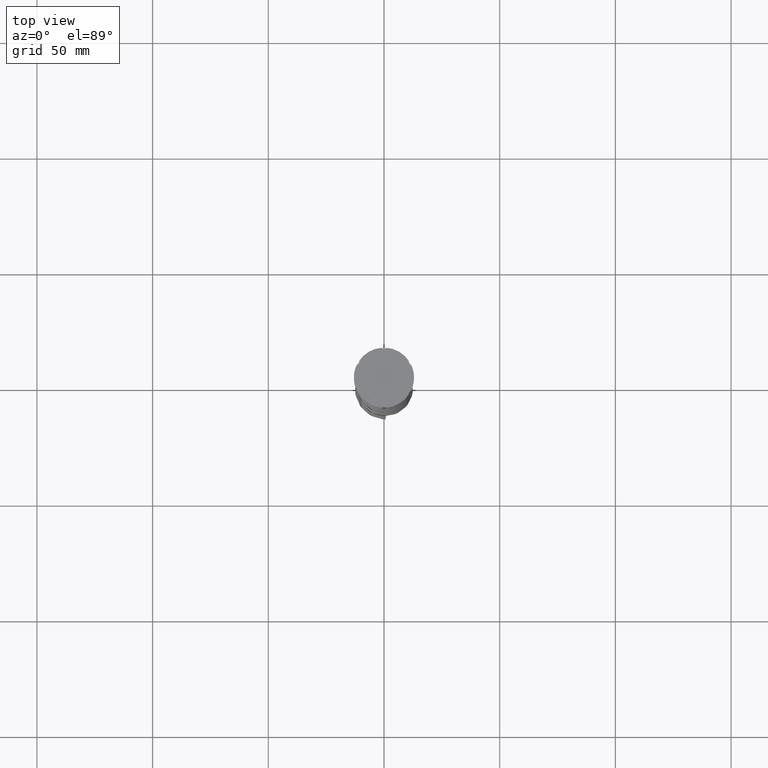
[diagram: clean part render]
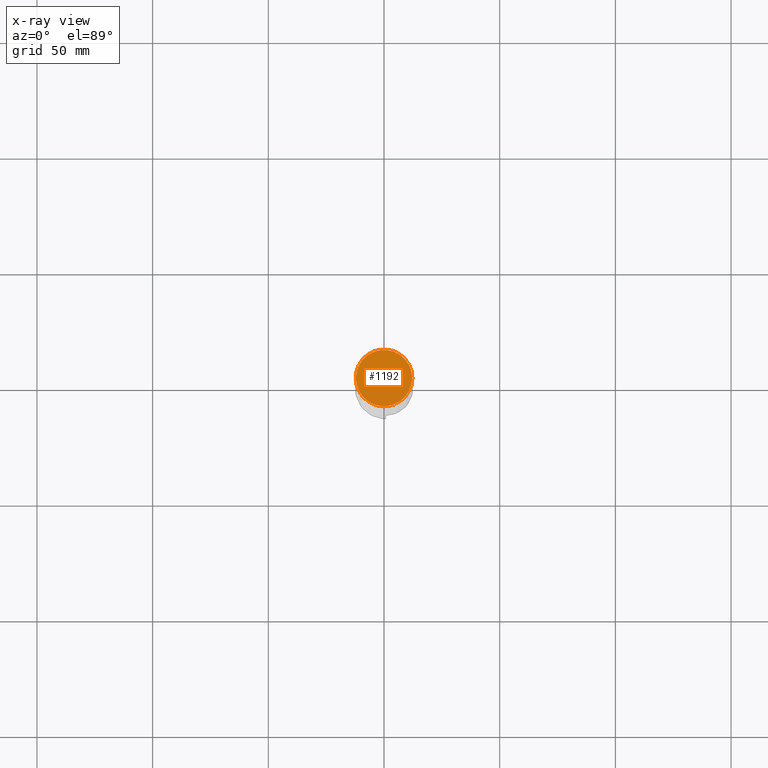
[diagram: x-ray — body ghosted, one internal face saturated and labeled with its STEP entity id]
A machine part, top view, then the same camera in x-ray: the body is ghosted and one INTERNAL B-rep face — a face not visible from any outside direction — is saturated and labeled: STEP entity #1192.
In plain terms, the highlighted planar face has unit normal (0, 0, -1).
Its self-contained STEP definition (entity closure, byte-faithful):
#159 = VERTEX_POINT ( 'NONE', #2824 ) ;
#176 = FACE_OUTER_BOUND ( 'NONE', #2832, .T. ) ;
#363 = AXIS2_PLACEMENT_3D ( 'NONE', #2960, #1294, #3026 ) ;
#630 = AXIS2_PLACEMENT_3D ( 'NONE', #1702, #633, #3427 ) ;
#633 = DIRECTION ( 'NONE',  ( -0.000000000000000000, -0.000000000000000000, 1.000000000000000000 ) ) ;
#930 = PLANE ( 'NONE',  #363 ) ;
#1051 = DIRECTION ( 'NONE',  ( -1.000000000000000000, 0.000000000000000000, 0.000000000000000000 ) ) ;
#1192 = ADVANCED_FACE ( 'NONE', ( #176 ), #930, .F. ) ;
#1294 = DIRECTION ( 'NONE',  ( 0.000000000000000000, 0.000000000000000000, -1.000000000000000000 ) ) ;
#1385 = CIRCLE ( 'NONE', #3856, 12.20000000000000639 ) ;
#1444 = DIRECTION ( 'NONE',  ( -0.000000000000000000, -0.000000000000000000, 1.000000000000000000 ) ) ;
#1702 = CARTESIAN_POINT ( 'NONE',  ( 0.000000000000000000, 0.000000000000000000, -12.00000000000000000 ) ) ;
#1714 = VERTEX_POINT ( 'NONE', #2072 ) ;
#1791 = CARTESIAN_POINT ( 'NONE',  ( 0.000000000000000000, 0.000000000000000000, -12.00000000000000000 ) ) ;
#2054 = EDGE_CURVE ( 'NONE', #1714, #159, #1385, .T. ) ;
#2072 = CARTESIAN_POINT ( 'NONE',  ( 12.20000000000000639, 1.512438796946981880E-15, -12.00000000000000000 ) ) ;
#2742 = ORIENTED_EDGE ( 'NONE', *, *, #3607, .T. ) ;
#2824 = CARTESIAN_POINT ( 'NONE',  ( -12.20000000000000639, 0.000000000000000000, -12.00000000000000000 ) ) ;
#2832 = EDGE_LOOP ( 'NONE', ( #2742, #3263 ) ) ;
#2960 = CARTESIAN_POINT ( 'NONE',  ( 0.000000000000000000, 0.000000000000000000, -12.00000000000000000 ) ) ;
#3026 = DIRECTION ( 'NONE',  ( -1.000000000000000000, 0.000000000000000000, -0.000000000000000000 ) ) ;
#3263 = ORIENTED_EDGE ( 'NONE', *, *, #2054, .T. ) ;
#3427 = DIRECTION ( 'NONE',  ( -1.000000000000000000, 0.000000000000000000, 0.000000000000000000 ) ) ;
#3607 = EDGE_CURVE ( 'NONE', #159, #1714, #3900, .T. ) ;
#3856 = AXIS2_PLACEMENT_3D ( 'NONE', #1791, #1444, #1051 ) ;
#3900 = CIRCLE ( 'NONE', #630, 12.20000000000000639 ) ;